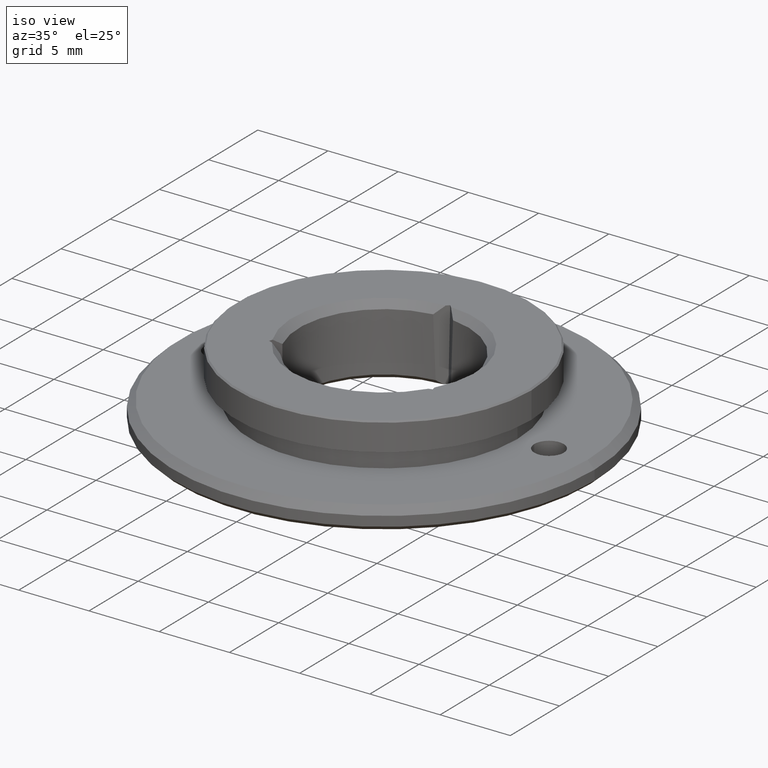
[diagram: clean part render]
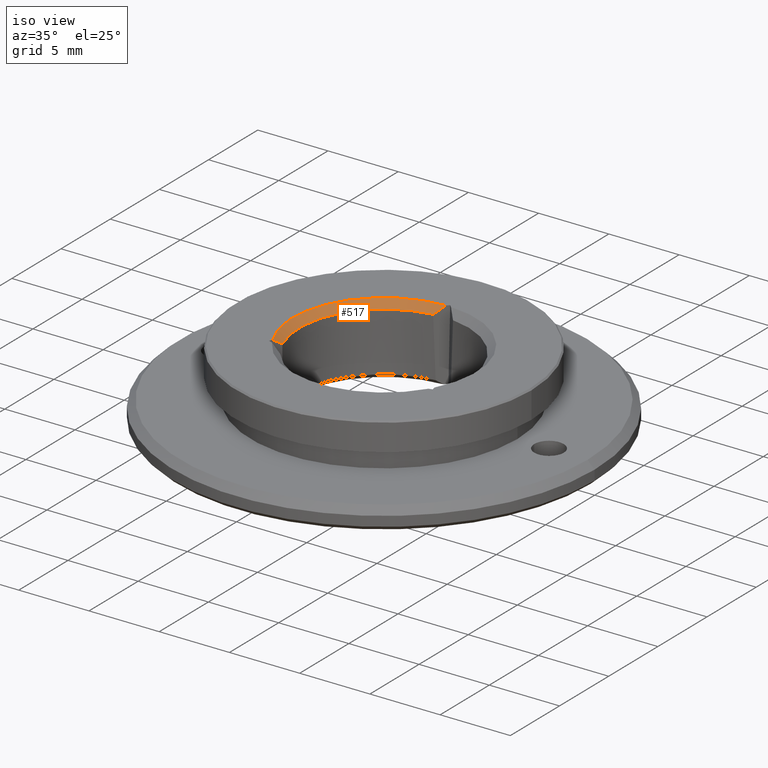
[diagram: same view with one face highlighted and labeled with its STEP entity id]
A machine part, iso view. The second image highlights one B-rep face of the part: STEP entity #517.
In plain terms, the highlighted conical surface has half-angle 45 deg.
Its self-contained STEP definition (entity closure, byte-faithful):
#8 = B_SPLINE_CURVE_WITH_KNOTS ( 'NONE', 3,
 ( #468, #737, #668, #260 ),
 .UNSPECIFIED., .F., .F.,
 ( 4, 4 ),
 ( 3.743883699496791185E-07, 0.0009016725439581060528 ),
 .UNSPECIFIED. ) ;
#17 = EDGE_CURVE ( 'NONE', #656, #547, #703, .T. ) ;
#25 = DIRECTION ( 'NONE',  ( -0.0000000000000000000, -0.0000000000000000000, 1.000000000000000000 ) ) ;
#58 = CARTESIAN_POINT ( 'NONE',  ( -5.695113200979015744, -2.876322932736226523, 2.327816139852492583 ) ) ;
#83 = DIRECTION ( 'NONE',  ( -0.0000000000000000000, -0.0000000000000000000, 1.000000000000000000 ) ) ;
#98 = FACE_OUTER_BOUND ( 'NONE', #736, .T. ) ;
#144 = CIRCLE ( 'NONE', #273, 6.550000000000000711 ) ;
#156 = DIRECTION ( 'NONE',  ( 1.000000000000000000, 0.0000000000000000000, 0.0000000000000000000 ) ) ;
#187 = ORIENTED_EDGE ( 'NONE', *, *, #835, .T. ) ;
#197 = B_SPLINE_CURVE_WITH_KNOTS ( 'NONE', 3,
 ( #394, #58, #663, #744 ),
 .UNSPECIFIED., .F., .F.,
 ( 4, 4 ),
 ( 3.489634720413499955E-07, 0.0009016471190601991949 ),
 .UNSPECIFIED. ) ;
#260 = CARTESIAN_POINT ( 'NONE',  ( -0.1854387021565554738, 6.547374472851121396, 2.500000000000001776 ) ) ;
#273 = AXIS2_PLACEMENT_3D ( 'NONE', #625, #25, #413 ) ;
#286 = CONICAL_SURFACE ( 'NONE', #389, 6.550000000000000711, 0.7853981633974482790 ) ;
#300 = EDGE_CURVE ( 'NONE', #462, #547, #197, .T. ) ;
#322 = CARTESIAN_POINT ( 'NONE',  ( -0.7069815226384644768, 6.008550334868453469, 2.000000000000001332 ) ) ;
#363 = CARTESIAN_POINT ( 'NONE',  ( -0.1854387021565554738, 6.547374472851121396, 2.500000000000001776 ) ) ;
#389 = AXIS2_PLACEMENT_3D ( 'NONE', #439, #782, #575 ) ;
#394 = CARTESIAN_POINT ( 'NONE',  ( -5.762911972657084547, -3.113092609513188780, 2.500000000000001332 ) ) ;
#413 = DIRECTION ( 'NONE',  ( 1.000000000000000000, 0.0000000000000000000, 0.0000000000000000000 ) ) ;
#439 = CARTESIAN_POINT ( 'NONE',  ( 0.0000000000000000000, 0.0000000000000000000, 2.500000000000001332 ) ) ;
#444 = ORIENTED_EDGE ( 'NONE', *, *, #17, .F. ) ;
#462 = VERTEX_POINT ( 'NONE', #550 ) ;
#468 = CARTESIAN_POINT ( 'NONE',  ( -0.7069815226384644768, 6.008550334868453469, 2.000000000000001332 ) ) ;
#517 = ADVANCED_FACE ( 'NONE', ( #98 ), #286, .F. ) ;
#518 = CARTESIAN_POINT ( 'NONE',  ( 0.0000000000000000000, 0.0000000000000000000, 2.000000000000000888 ) ) ;
#547 = VERTEX_POINT ( 'NONE', #708 ) ;
#550 = CARTESIAN_POINT ( 'NONE',  ( -5.762911972657084547, -3.113092609513188780, 2.500000000000001332 ) ) ;
#575 = DIRECTION ( 'NONE',  ( 1.000000000000000000, 0.0000000000000000000, 0.0000000000000000000 ) ) ;
#580 = AXIS2_PLACEMENT_3D ( 'NONE', #518, #83, #156 ) ;
#625 = CARTESIAN_POINT ( 'NONE',  ( 0.0000000000000000000, 0.0000000000000000000, 2.500000000000001332 ) ) ;
#653 = ORIENTED_EDGE ( 'NONE', *, *, #755, .T. ) ;
#656 = VERTEX_POINT ( 'NONE', #322 ) ;
#663 = CARTESIAN_POINT ( 'NONE',  ( -5.626589387077131299, -2.636388150906007866, 2.160495414665194236 ) ) ;
#668 = CARTESIAN_POINT ( 'NONE',  ( -0.3565878712521965421, 6.370274175844049758, 2.327816139852491695 ) ) ;
#703 = CIRCLE ( 'NONE', #580, 6.049999999999999822 ) ;
#708 = CARTESIAN_POINT ( 'NONE',  ( -5.557047991232806794, -2.392011208823120683, 2.000000000000015099 ) ) ;
#736 = EDGE_LOOP ( 'NONE', ( #444, #653, #187, #787 ) ) ;
#737 = CARTESIAN_POINT ( 'NONE',  ( -0.5301155806176975904, 6.190963421325710314, 2.160495414665191127 ) ) ;
#744 = CARTESIAN_POINT ( 'NONE',  ( -5.557047991232806794, -2.392011208823120683, 2.000000000000015099 ) ) ;
#755 = EDGE_CURVE ( 'NONE', #656, #854, #8, .T. ) ;
#782 = DIRECTION ( 'NONE',  ( -0.0000000000000000000, -0.0000000000000000000, 1.000000000000000000 ) ) ;
#787 = ORIENTED_EDGE ( 'NONE', *, *, #300, .T. ) ;
#835 = EDGE_CURVE ( 'NONE', #854, #462, #144, .T. ) ;
#854 = VERTEX_POINT ( 'NONE', #363 ) ;